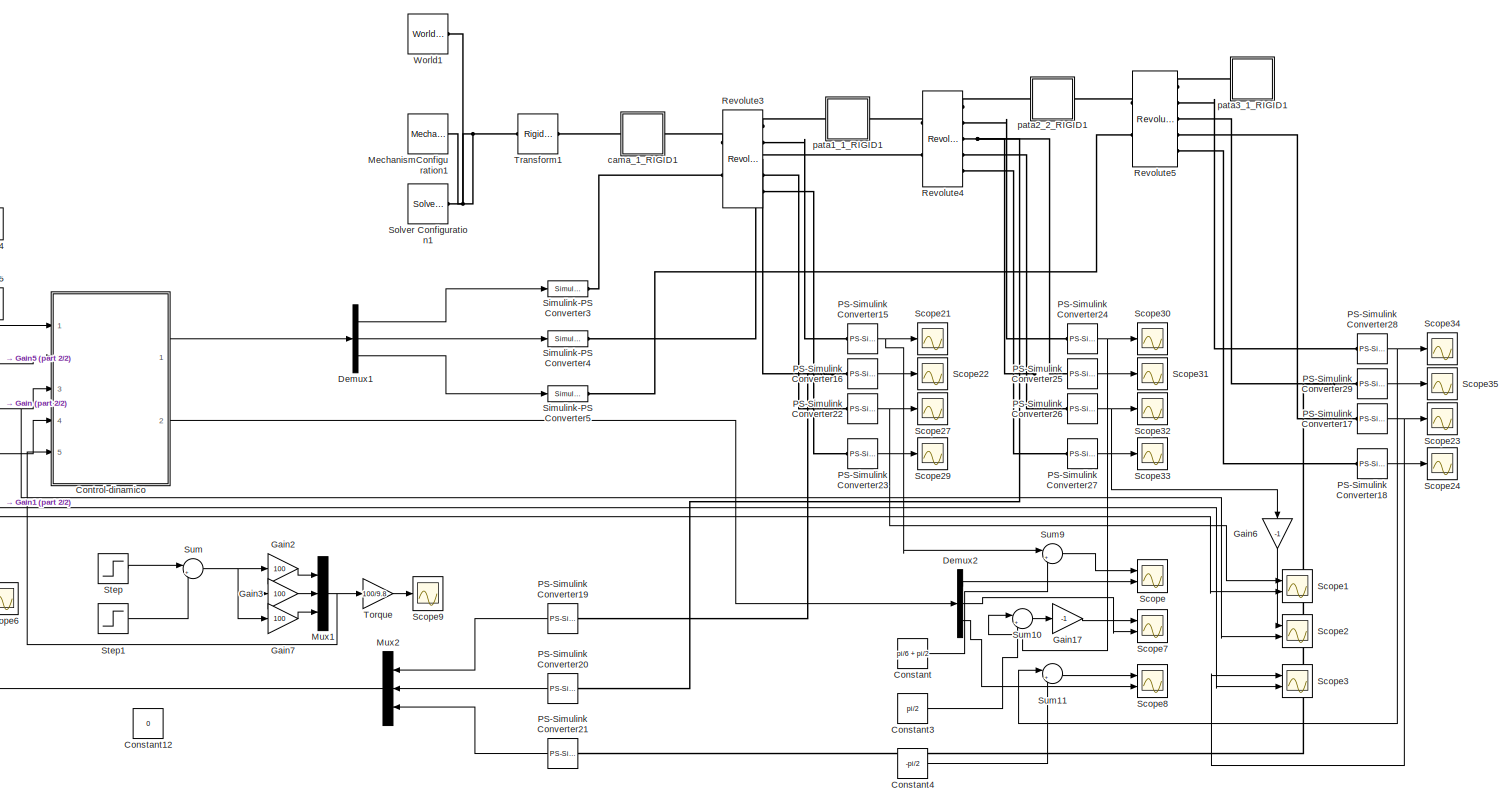
[diagram: root canvas - part 1/2, center side, full height]
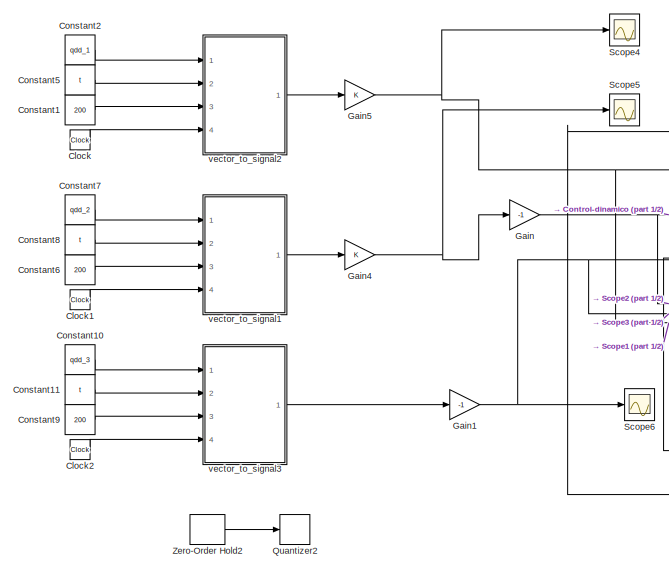
[diagram: root canvas - part 2/2, middle left region]
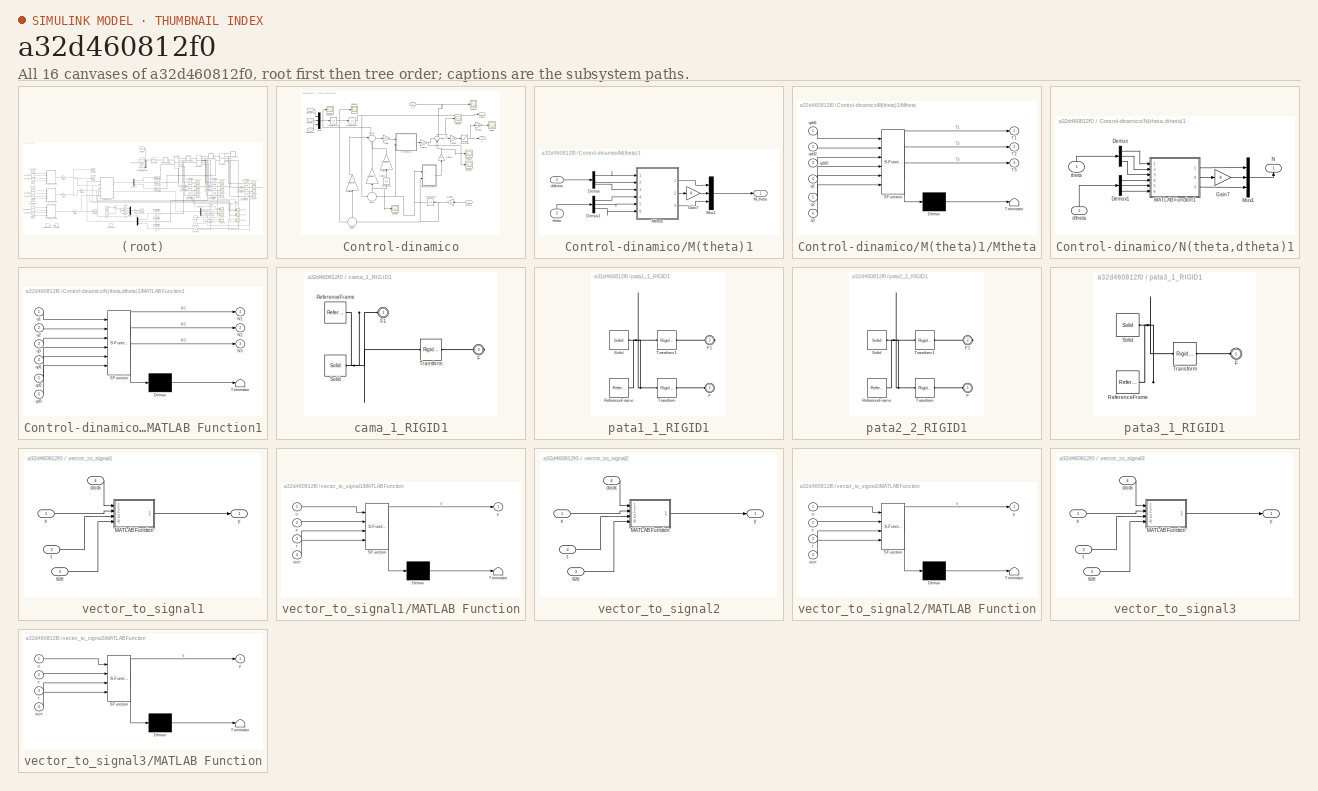
[diagram: thumbnail index - all 16 canvases of the model, root first then tree order]
MODEL slx_a32d460812f0
KIND model
CONFIG AbsTol = auto
CONFIG EnableMultiTasking = off
CONFIG FixedStep = auto
CONFIG MaxStep = auto
CONFIG MinStep = auto
CONFIG RelTol = 1e-3
CONFIG SampleTimeConstraint = Unconstrained
CONFIG Solver = VariableStepAuto
CONFIG SolverName = VariableStepAuto
CONFIG StartTime = 0.0
CONFIG StopTime = 2
WORKSPACE source: external: MATLAB File  (data not in archive)
BLOCK [Clock] Clock
BLOCK [Clock] Clock1
BLOCK [Clock] Clock2
BLOCK [Constant] Constant
  Value = pi/6 + pi/2
BLOCK [Constant] Constant1
  Value = 200
BLOCK [Constant] Constant10
  Value = qdd_3
BLOCK [Constant] Constant11
  Value = t
BLOCK [Constant] Constant12
  Value = 0
BLOCK [Constant] Constant2
  Value = qdd_1
BLOCK [Constant] Constant3
  Value = pi/2
BLOCK [Constant] Constant4
  Value = -pi/2
BLOCK [Constant] Constant5
  Value = t
BLOCK [Constant] Constant6
  Value = 200
BLOCK [Constant] Constant7
  Value = qdd_2
BLOCK [Constant] Constant8
  Value = t
BLOCK [Constant] Constant9
  Value = 200
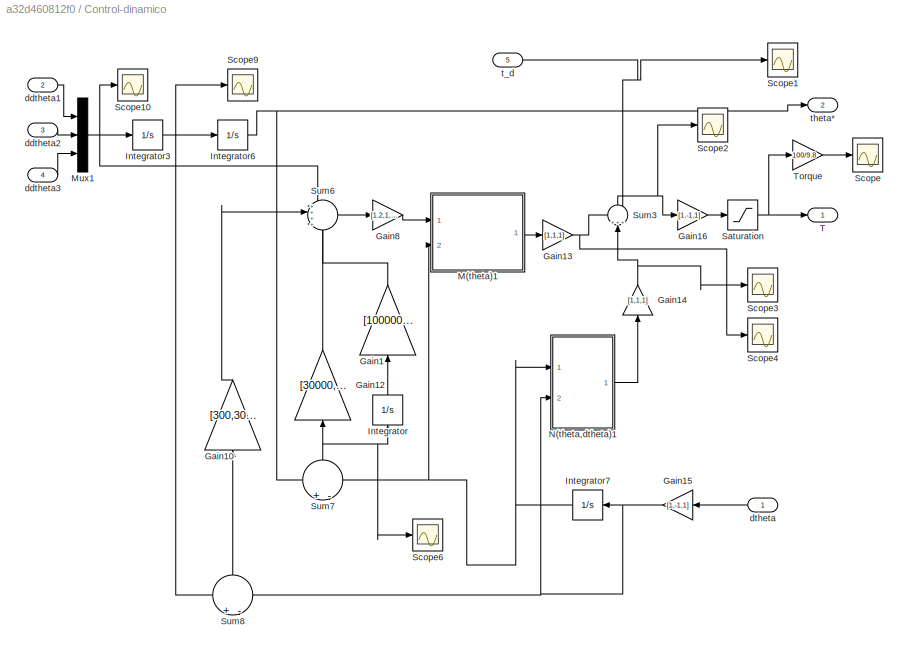
BLOCK [SubSystem] Control-dinamico
  Ports = [5, 2]
  RequestExecContextInheritance = off
  Variant = off
BLOCK [Gain] Control-dinamico/Gain1
  Gain = [1000000,1000000,1000000]
  OutDataTypeStr = Inherit: Inherit via internal rule
  ParamDataTypeStr = Inherit: Inherit via internal rule
  SaturateOnIntegerOverflow = off
BLOCK [Gain] Control-dinamico/Gain10
  Gain = [300,300,300]
  OutDataTypeStr = Inherit: Inherit via internal rule
  ParamDataTypeStr = Inherit: Inherit via internal rule
  SaturateOnIntegerOverflow = off
BLOCK [Gain] Control-dinamico/Gain12
  Gain = [30000,30000,30000]
  OutDataTypeStr = Inherit: Inherit via internal rule
  ParamDataTypeStr = Inherit: Inherit via internal rule
  SaturateOnIntegerOverflow = off
BLOCK [Gain] Control-dinamico/Gain13
  Gain = [1,1,1]
  OutDataTypeStr = Inherit: Inherit via internal rule
  ParamDataTypeStr = Inherit: Inherit via internal rule
  SaturateOnIntegerOverflow = off
BLOCK [Gain] Control-dinamico/Gain14
  Gain = [1,1,1]
  OutDataTypeStr = Inherit: Inherit via internal rule
  ParamDataTypeStr = Inherit: Inherit via internal rule
  SaturateOnIntegerOverflow = off
BLOCK [Gain] Control-dinamico/Gain15
  Gain = [1,-1,1]
  OutDataTypeStr = Inherit: Inherit via internal rule
  ParamDataTypeStr = Inherit: Inherit via internal rule
  SaturateOnIntegerOverflow = off
BLOCK [Gain] Control-dinamico/Gain16
  Gain = [1,-1,1]
  OutDataTypeStr = Inherit: Inherit via internal rule
  ParamDataTypeStr = Inherit: Inherit via internal rule
  SaturateOnIntegerOverflow = off
BLOCK [Gain] Control-dinamico/Gain8
  Gain = [1.2,1,11.2]
  OutDataTypeStr = Inherit: Inherit via internal rule
  ParamDataTypeStr = Inherit: Inherit via internal rule
  SaturateOnIntegerOverflow = off
BLOCK [Integrator] Control-dinamico/Integrator
  InitialCondition = [0,0,0]
  Ports = [1, 1]
BLOCK [Integrator] Control-dinamico/Integrator3
  Ports = [1, 1]
BLOCK [Integrator] Control-dinamico/Integrator6
  InitialCondition = [0,0,-pi/2]
  Ports = [1, 1]
BLOCK [Integrator] Control-dinamico/Integrator7
  InitialCondition = [0,0,-pi/2]
  Ports = [1, 1]
BLOCK [SubSystem] Control-dinamico/M(theta)1
  Ports = [2, 1]
  RequestExecContextInheritance = off
  Variant = off
BLOCK [Demux] Control-dinamico/M(theta)1/Demux
  DisplayOption = bar
  Outputs = 3
  Ports = [1, 3]
BLOCK [Demux] Control-dinamico/M(theta)1/Demux1
  DisplayOption = bar
  Outputs = 3
  Ports = [1, 3]
BLOCK [Gain] Control-dinamico/M(theta)1/Gain7
  OutDataTypeStr = Inherit: Inherit via internal rule
  ParamDataTypeStr = Inherit: Inherit via internal rule
  SaturateOnIntegerOverflow = off
BLOCK [Outport] Control-dinamico/M(theta)1/M_theta
  IconDisplay = Port number
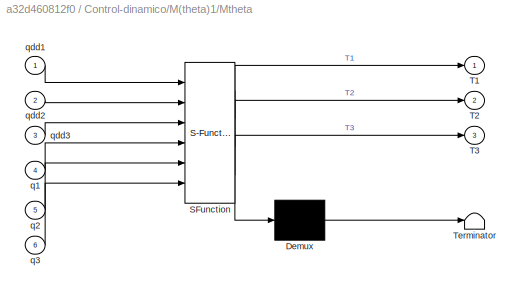
BLOCK [SubSystem] Control-dinamico/M(theta)1/Mtheta
  ErrorFcn = Stateflow.Translate.translate
  PermitHierarchicalResolution = ExplicitOnly
  Ports = [6, 3]
  RequestExecContextInheritance = off
  SFBlockType = MATLAB Function
  TreatAsAtomicUnit = on
  Variant = off
BLOCK [Demux] Control-dinamico/M(theta)1/Mtheta/ Demux 
  Outputs = 1
  Ports = [1, 1]
BLOCK [S-Function] Control-dinamico/M(theta)1/Mtheta/ SFunction 
  EnableBusSupport = on
  FunctionName = sf_sfun
  PortCounts = [6 4]
  Ports = [6, 4]
  SFcnIsStateOwnerBlock = off
  SFunctionDeploymentMode = off
  Tag = Stateflow S-Function hex_simplify_control 5
BLOCK [Terminator] Control-dinamico/M(theta)1/Mtheta/ Terminator 
BLOCK [Outport] Control-dinamico/M(theta)1/Mtheta/T1
  IconDisplay = Port number
BLOCK [Outport] Control-dinamico/M(theta)1/Mtheta/T2
  IconDisplay = Port number
  Port = 2
BLOCK [Outport] Control-dinamico/M(theta)1/Mtheta/T3
  IconDisplay = Port number
  Port = 3
BLOCK [Inport] Control-dinamico/M(theta)1/Mtheta/q1
  IconDisplay = Port number
  Port = 4
BLOCK [Inport] Control-dinamico/M(theta)1/Mtheta/q2
  IconDisplay = Port number
  Port = 5
BLOCK [Inport] Control-dinamico/M(theta)1/Mtheta/q3
  IconDisplay = Port number
  Port = 6
BLOCK [Inport] Control-dinamico/M(theta)1/Mtheta/qdd1
  IconDisplay = Port number
BLOCK [Inport] Control-dinamico/M(theta)1/Mtheta/qdd2
  IconDisplay = Port number
  Port = 2
BLOCK [Inport] Control-dinamico/M(theta)1/Mtheta/qdd3
  IconDisplay = Port number
  Port = 3
BLOCK [Mux] Control-dinamico/M(theta)1/Mux1
  DisplayOption = bar
  Inputs = 3
  Ports = [3, 1]
BLOCK [Inport] Control-dinamico/M(theta)1/ddtheta
  IconDisplay = Port number
BLOCK [Inport] Control-dinamico/M(theta)1/theta
  IconDisplay = Port number
  Port = 2
BLOCK [Mux] Control-dinamico/Mux1
  DisplayOption = bar
  Inputs = 3
  Ports = [3, 1]
BLOCK [SubSystem] Control-dinamico/N(theta,dtheta)1
  Ports = [2, 1]
  RequestExecContextInheritance = off
  Variant = off
BLOCK [Demux] Control-dinamico/N(theta,dtheta)1/Demux
  DisplayOption = bar
  Outputs = 3
  Ports = [1, 3]
BLOCK [Demux] Control-dinamico/N(theta,dtheta)1/Demux1
  DisplayOption = bar
  Outputs = 3
  Ports = [1, 3]
BLOCK [Gain] Control-dinamico/N(theta,dtheta)1/Gain7
  OutDataTypeStr = Inherit: Inherit via internal rule
  ParamDataTypeStr = Inherit: Inherit via internal rule
  SaturateOnIntegerOverflow = off
BLOCK [SubSystem] Control-dinamico/N(theta,dtheta)1/MATLAB Function1
  ErrorFcn = Stateflow.Translate.translate
  PermitHierarchicalResolution = ExplicitOnly
  Ports = [6, 3]
  RequestExecContextInheritance = off
  SFBlockType = MATLAB Function
  TreatAsAtomicUnit = on
  Variant = off
BLOCK [Demux] Control-dinamico/N(theta,dtheta)1/MATLAB Function1/ Demux 
  Outputs = 1
  Ports = [1, 1]
BLOCK [S-Function] Control-dinamico/N(theta,dtheta)1/MATLAB Function1/ SFunction 
  EnableBusSupport = on
  FunctionName = sf_sfun
  PortCounts = [6 4]
  Ports = [6, 4]
  SFcnIsStateOwnerBlock = off
  SFunctionDeploymentMode = off
  Tag = Stateflow S-Function hex_simplify_control 6
BLOCK [Terminator] Control-dinamico/N(theta,dtheta)1/MATLAB Function1/ Terminator 
BLOCK [Outport] Control-dinamico/N(theta,dtheta)1/MATLAB Function1/N1
  IconDisplay = Port number
BLOCK [Outport] Control-dinamico/N(theta,dtheta)1/MATLAB Function1/N2
  IconDisplay = Port number
  Port = 2
BLOCK [Outport] Control-dinamico/N(theta,dtheta)1/MATLAB Function1/N3
  IconDisplay = Port number
  Port = 3
BLOCK [Inport] Control-dinamico/N(theta,dtheta)1/MATLAB Function1/q1
  IconDisplay = Port number
BLOCK [Inport] Control-dinamico/N(theta,dtheta)1/MATLAB Function1/q2
  IconDisplay = Port number
  Port = 2
BLOCK [Inport] Control-dinamico/N(theta,dtheta)1/MATLAB Function1/q3
  IconDisplay = Port number
  Port = 3
BLOCK [Inport] Control-dinamico/N(theta,dtheta)1/MATLAB Function1/qd1
  IconDisplay = Port number
  Port = 4
BLOCK [Inport] Control-dinamico/N(theta,dtheta)1/MATLAB Function1/qd2
  IconDisplay = Port number
  Port = 5
BLOCK [Inport] Control-dinamico/N(theta,dtheta)1/MATLAB Function1/qd3
  IconDisplay = Port number
  Port = 6
BLOCK [Mux] Control-dinamico/N(theta,dtheta)1/Mux1
  DisplayOption = bar
  Inputs = 3
  Ports = [3, 1]
BLOCK [Outport] Control-dinamico/N(theta,dtheta)1/N
  IconDisplay = Port number
BLOCK [Inport] Control-dinamico/N(theta,dtheta)1/dtheta
  IconDisplay = Port number
  Port = 2
BLOCK [Inport] Control-dinamico/N(theta,dtheta)1/theta
  IconDisplay = Port number
BLOCK [Saturate] Control-dinamico/Saturation
  InputPortMap = u0
  LinearizeAsGain = off
  LowerLimit = -5
  Ports = [1, 1]
  UpperLimit = 5
  ZeroCross = off
BLOCK [Scope] Control-dinamico/Scope
  NumInputPorts = 1
  Ports = [1]
  ScopeSpecificationString = Simulink.scopes.TimeScopeBlockCfg('CurrentConfiguration', extmgr.ConfigurationSet(extmgr.Configuration('Core','General UI',true,'FigureColor',[1 1 1]),extmgr.Configuration('Core','Source UI',true),extmgr.Configuration('Sources','WiredSimulink',true,'DataLoggingVariableName','ScopeData3'),extmgr.Configuration('Visuals','Time Domain',true,'SerializedDisplays',{struct('MinYLimReal','-5.47517','MaxYLi...<+1879ch>
BLOCK [Scope] Control-dinamico/Scope1
  NumInputPorts = 1
  Ports = [1]
  ScopeSpecificationString = Simulink.scopes.TimeScopeBlockCfg('CurrentConfiguration', extmgr.ConfigurationSet(extmgr.Configuration('Core','General UI',true,'FigureColor',[1 1 1]),extmgr.Configuration('Core','Source UI',true),extmgr.Configuration('Sources','WiredSimulink',true,'DataLoggingVariableName','ScopeData4'),extmgr.Configuration('Visuals','Time Domain',true,'SerializedDisplays',{struct('MinYLimReal','-0.125','MaxYLimR...<+1856ch>
BLOCK [Scope] Control-dinamico/Scope10
  NumInputPorts = 1
  Ports = [1]
  ScopeSpecificationString = Simulink.scopes.TimeScopeBlockCfg('CurrentConfiguration', extmgr.ConfigurationSet(extmgr.Configuration('Core','General UI',true),extmgr.Configuration('Core','Source UI',true),extmgr.Configuration('Sources','WiredSimulink',true,'DataLoggingVariableName','ScopeData10'),extmgr.Configuration('Visuals','Time Domain',true,'SerializedDisplays',{struct('MinYLimReal','-0.3927','MaxYLimReal','3.53429','YLab...<+1388ch>
BLOCK [Scope] Control-dinamico/Scope2
  NumInputPorts = 1
  Ports = [1]
  ScopeSpecificationString = Simulink.scopes.TimeScopeBlockCfg('CurrentConfiguration', extmgr.ConfigurationSet(extmgr.Configuration('Core','General UI',true,'FigureColor',[1 1 1]),extmgr.Configuration('Core','Source UI',true),extmgr.Configuration('Sources','WiredSimulink',true,'DataLoggingVariableName','ScopeData5'),extmgr.Configuration('Visuals','Time Domain',true,'SerializedDisplays',{struct('MinYLimReal','-1.47488','MaxYLi...<+1897ch>
BLOCK [Scope] Control-dinamico/Scope3
  NumInputPorts = 1
  Ports = [1]
  ScopeSpecificationString = Simulink.scopes.TimeScopeBlockCfg('CurrentConfiguration', extmgr.ConfigurationSet(extmgr.Configuration('Core','General UI',true,'FigureColor',[1 1 1]),extmgr.Configuration('Core','Source UI',true),extmgr.Configuration('Sources','WiredSimulink',true,'DataLoggingVariableName','ScopeData6'),extmgr.Configuration('Visuals','Time Domain',true,'SerializedDisplays',{struct('MinYLimReal','-1.47488','MaxYLi...<+1897ch>
BLOCK [Scope] Control-dinamico/Scope4
  NumInputPorts = 1
  Ports = [1]
  ScopeSpecificationString = Simulink.scopes.TimeScopeBlockCfg('CurrentConfiguration', extmgr.ConfigurationSet(extmgr.Configuration('Core','General UI',true,'FigureColor',[1 1 1]),extmgr.Configuration('Core','Source UI',true),extmgr.Configuration('Sources','WiredSimulink',true,'DataLoggingVariableName','ScopeData7'),extmgr.Configuration('Visuals','Time Domain',true,'SerializedDisplays',{struct('MinYLimReal','-1.47488','MaxYLi...<+1897ch>
BLOCK [Scope] Control-dinamico/Scope6
  NumInputPorts = 1
  Ports = [1]
  ScopeSpecificationString = Simulink.scopes.TimeScopeBlockCfg('CurrentConfiguration', extmgr.ConfigurationSet(extmgr.Configuration('Core','General UI',true),extmgr.Configuration('Core','Source UI',true),extmgr.Configuration('Sources','WiredSimulink',true,'DataLoggingVariableName','ScopeData1'),extmgr.Configuration('Visuals','Time Domain',true,'SerializedDisplays',{struct('MinYLimReal','-0.1568','MaxYLimReal','0.15334','YLabe...<+1433ch>
BLOCK [Scope] Control-dinamico/Scope9
  NumInputPorts = 1
  Ports = [1]
  ScopeSpecificationString = Simulink.scopes.TimeScopeBlockCfg('CurrentConfiguration', extmgr.ConfigurationSet(extmgr.Configuration('Core','General UI',true),extmgr.Configuration('Core','Source UI',true),extmgr.Configuration('Sources','WiredSimulink',true,'DataLoggingVariableName','ScopeData8'),extmgr.Configuration('Visuals','Time Domain',true,'SerializedDisplays',{struct('MinYLimReal','-3.3159','MaxYLimReal','3.31591','YLabe...<+1402ch>
BLOCK [Sum] Control-dinamico/Sum3
  IconShape = round
  InputSameDT = off
  Inputs = +++
  OutDataTypeStr = Inherit: Inherit via internal rule
  Ports = [3, 1]
  SaturateOnIntegerOverflow = off
BLOCK [Sum] Control-dinamico/Sum6
  IconShape = round
  InputSameDT = off
  Inputs = ++++
  OutDataTypeStr = Inherit: Inherit via internal rule
  Ports = [4, 1]
  SaturateOnIntegerOverflow = off
BLOCK [Sum] Control-dinamico/Sum7
  IconShape = round
  InputSameDT = off
  Inputs = +-
  OutDataTypeStr = Inherit: Inherit via internal rule
  Ports = [2, 1]
  SaturateOnIntegerOverflow = off
BLOCK [Sum] Control-dinamico/Sum8
  IconShape = round
  InputSameDT = off
  Inputs = +-
  OutDataTypeStr = Inherit: Inherit via internal rule
  Ports = [2, 1]
  SaturateOnIntegerOverflow = off
BLOCK [Outport] Control-dinamico/T
  IconDisplay = Port number
BLOCK [Gain] Control-dinamico/Torque
  Gain = 100/9.8
  OutDataTypeStr = Inherit: Inherit via internal rule
  ParamDataTypeStr = Inherit: Inherit via internal rule
  SaturateOnIntegerOverflow = off
BLOCK [Inport] Control-dinamico/ddtheta1
  IconDisplay = Port number
  Port = 2
BLOCK [Inport] Control-dinamico/ddtheta2
  IconDisplay = Port number
  Port = 3
BLOCK [Inport] Control-dinamico/ddtheta3
  IconDisplay = Port number
  Port = 4
BLOCK [Inport] Control-dinamico/dtheta
  IconDisplay = Port number
BLOCK [Inport] Control-dinamico/t_d
  IconDisplay = Port number
  Port = 5
BLOCK [Outport] Control-dinamico/theta*
  IconDisplay = Port number
  Port = 2
BLOCK [Demux] Demux1
  DisplayOption = bar
  Outputs = 3
  Ports = [1, 3]
BLOCK [Demux] Demux2
  DisplayOption = bar
  Outputs = 3
  Ports = [1, 3]
BLOCK [Gain] Gain
  Gain = -1
  OutDataTypeStr = Inherit: Inherit via internal rule
  ParamDataTypeStr = Inherit: Inherit via internal rule
  SaturateOnIntegerOverflow = off
BLOCK [Gain] Gain1
  Gain = -1
  OutDataTypeStr = Inherit: Inherit via internal rule
  ParamDataTypeStr = Inherit: Inherit via internal rule
  SaturateOnIntegerOverflow = off
BLOCK [Gain] Gain17
  Gain = -1
  OutDataTypeStr = Inherit: Inherit via internal rule
  ParamDataTypeStr = Inherit: Inherit via internal rule
  SaturateOnIntegerOverflow = off
BLOCK [Gain] Gain2
  Gain = 100
  OutDataTypeStr = Inherit: Inherit via internal rule
  ParamDataTypeStr = Inherit: Inherit via internal rule
  SaturateOnIntegerOverflow = off
BLOCK [Gain] Gain3
  Gain = 100
  OutDataTypeStr = Inherit: Inherit via internal rule
  ParamDataTypeStr = Inherit: Inherit via internal rule
  SaturateOnIntegerOverflow = off
BLOCK [Gain] Gain4
  OutDataTypeStr = Inherit: Inherit via internal rule
  ParamDataTypeStr = Inherit: Inherit via internal rule
  SaturateOnIntegerOverflow = off
BLOCK [Gain] Gain5
  OutDataTypeStr = Inherit: Inherit via internal rule
  ParamDataTypeStr = Inherit: Inherit via internal rule
  SaturateOnIntegerOverflow = off
BLOCK [Gain] Gain6
  Gain = -1
  OutDataTypeStr = Inherit: Inherit via internal rule
  ParamDataTypeStr = Inherit: Inherit via internal rule
  SaturateOnIntegerOverflow = off
BLOCK [Gain] Gain7
  Gain = 100
  OutDataTypeStr = Inherit: Inherit via internal rule
  ParamDataTypeStr = Inherit: Inherit via internal rule
  SaturateOnIntegerOverflow = off
BLOCK [Reference] MechanismConfiguration1  REF=sm_lib/Utilities/Mechanism
Configuration
  Ports = [0, 0, 0, 0, 0, 0, 1]
  SourceBlock = sm_lib/Utilities/Mechanism\nConfiguration
  SourceProductBaseCode = MS
  SourceProductName = Simscape Multibody
  SourceType = Mechanism\nConfiguration
BLOCK [Mux] Mux1
  DisplayOption = bar
  Inputs = 3
  Ports = [3, 1]
BLOCK [Mux] Mux2
  DisplayOption = bar
  Inputs = 3
  Ports = [3, 1]
BLOCK [Reference] PS-Simulink Converter15  REF=nesl_utility/PS-Simulink
Converter
  Ports = [0, 1, 0, 0, 0, 1]
  SourceBlock = nesl_utility/PS-Simulink\nConverter
  SourceProductBaseCode = SS
  SourceProductName = Simscape
  SourceType = PS-Simulink\nConverter
BLOCK [Reference] PS-Simulink Converter16  REF=nesl_utility/PS-Simulink
Converter
  Ports = [0, 1, 0, 0, 0, 1]
  SourceBlock = nesl_utility/PS-Simulink\nConverter
  SourceProductBaseCode = SS
  SourceProductName = Simscape
  SourceType = PS-Simulink\nConverter
BLOCK [Reference] PS-Simulink Converter17  REF=nesl_utility/PS-Simulink
Converter
  Ports = [0, 1, 0, 0, 0, 1]
  SourceBlock = nesl_utility/PS-Simulink\nConverter
  SourceProductBaseCode = SS
  SourceProductName = Simscape
  SourceType = PS-Simulink\nConverter
BLOCK [Reference] PS-Simulink Converter18  REF=nesl_utility/PS-Simulink
Converter
  Ports = [0, 1, 0, 0, 0, 1]
  SourceBlock = nesl_utility/PS-Simulink\nConverter
  SourceProductBaseCode = SS
  SourceProductName = Simscape
  SourceType = PS-Simulink\nConverter
BLOCK [Reference] PS-Simulink Converter19  REF=nesl_utility/PS-Simulink
Converter
  Ports = [0, 1, 0, 0, 0, 1]
  SourceBlock = nesl_utility/PS-Simulink\nConverter
  SourceProductBaseCode = SS
  SourceProductName = Simscape
  SourceType = PS-Simulink\nConverter
BLOCK [Reference] PS-Simulink Converter20  REF=nesl_utility/PS-Simulink
Converter
  Ports = [0, 1, 0, 0, 0, 1]
  SourceBlock = nesl_utility/PS-Simulink\nConverter
  SourceProductBaseCode = SS
  SourceProductName = Simscape
  SourceType = PS-Simulink\nConverter
BLOCK [Reference] PS-Simulink Converter21  REF=nesl_utility/PS-Simulink
Converter
  Ports = [0, 1, 0, 0, 0, 1]
  SourceBlock = nesl_utility/PS-Simulink\nConverter
  SourceProductBaseCode = SS
  SourceProductName = Simscape
  SourceType = PS-Simulink\nConverter
BLOCK [Reference] PS-Simulink Converter22  REF=nesl_utility/PS-Simulink
Converter
  Ports = [0, 1, 0, 0, 0, 1]
  SourceBlock = nesl_utility/PS-Simulink\nConverter
  SourceProductBaseCode = SS
  SourceProductName = Simscape
  SourceType = PS-Simulink\nConverter
BLOCK [Reference] PS-Simulink Converter23  REF=nesl_utility/PS-Simulink
Converter
  Ports = [0, 1, 0, 0, 0, 1]
  SourceBlock = nesl_utility/PS-Simulink\nConverter
  SourceProductBaseCode = SS
  SourceProductName = Simscape
  SourceType = PS-Simulink\nConverter
BLOCK [Reference] PS-Simulink Converter24  REF=nesl_utility/PS-Simulink
Converter
  Ports = [0, 1, 0, 0, 0, 1]
  SourceBlock = nesl_utility/PS-Simulink\nConverter
  SourceProductBaseCode = SS
  SourceProductName = Simscape
  SourceType = PS-Simulink\nConverter
BLOCK [Reference] PS-Simulink Converter25  REF=nesl_utility/PS-Simulink
Converter
  Ports = [0, 1, 0, 0, 0, 1]
  SourceBlock = nesl_utility/PS-Simulink\nConverter
  SourceProductBaseCode = SS
  SourceProductName = Simscape
  SourceType = PS-Simulink\nConverter
BLOCK [Reference] PS-Simulink Converter26  REF=nesl_utility/PS-Simulink
Converter
  Ports = [0, 1, 0, 0, 0, 1]
  SourceBlock = nesl_utility/PS-Simulink\nConverter
  SourceProductBaseCode = SS
  SourceProductName = Simscape
  SourceType = PS-Simulink\nConverter
BLOCK [Reference] PS-Simulink Converter27  REF=nesl_utility/PS-Simulink
Converter
  Ports = [0, 1, 0, 0, 0, 1]
  SourceBlock = nesl_utility/PS-Simulink\nConverter
  SourceProductBaseCode = SS
  SourceProductName = Simscape
  SourceType = PS-Simulink\nConverter
BLOCK [Reference] PS-Simulink Converter28  REF=nesl_utility/PS-Simulink
Converter
  Ports = [0, 1, 0, 0, 0, 1]
  SourceBlock = nesl_utility/PS-Simulink\nConverter
  SourceProductBaseCode = SS
  SourceProductName = Simscape
  SourceType = PS-Simulink\nConverter
BLOCK [Reference] PS-Simulink Converter29  REF=nesl_utility/PS-Simulink
Converter
  Ports = [0, 1, 0, 0, 0, 1]
  SourceBlock = nesl_utility/PS-Simulink\nConverter
  SourceProductBaseCode = SS
  SourceProductName = Simscape
  SourceType = PS-Simulink\nConverter
BLOCK [Quantizer] Quantizer2
  QuantizationInterval = 1/sample_frequency
BLOCK [Reference] Revolute3  REF=sm_lib/Joints/Revolute Joint
  Ports = [0, 0, 0, 0, 0, 2, 5]
  SourceBlock = sm_lib/Joints/Revolute Joint
  SourceProductBaseCode = MS
  SourceProductName = Simscape Multibody
  SourceType = Revolute Joint
BLOCK [Reference] Revolute4  REF=sm_lib/Joints/Revolute Joint
  Ports = [0, 0, 0, 0, 0, 2, 5]
  SourceBlock = sm_lib/Joints/Revolute Joint
  SourceProductBaseCode = MS
  SourceProductName = Simscape Multibody
  SourceType = Revolute Joint
BLOCK [Reference] Revolute5  REF=sm_lib/Joints/Revolute Joint
  Ports = [0, 0, 0, 0, 0, 2, 5]
  SourceBlock = sm_lib/Joints/Revolute Joint
  SourceProductBaseCode = MS
  SourceProductName = Simscape Multibody
  SourceType = Revolute Joint
BLOCK [Scope] Scope
  NumInputPorts = 2
  Ports = [2]
  ScopeSpecificationString = Simulink.scopes.TimeScopeBlockCfg('CurrentConfiguration', extmgr.ConfigurationSet(extmgr.Configuration('Core','General UI',true,'FigureColor',[1 1 1]),extmgr.Configuration('Core','Source UI',true),extmgr.Configuration('Sources','WiredSimulink',true,'DataLoggingVariableName','ScopeData19'),extmgr.Configuration('Visuals','Time Domain',true,'SerializedDisplays',{struct('MinYLimReal','-0.42369','MaxYL...<+1753ch>
BLOCK [Scope] Scope1
  NumInputPorts = 2
  Ports = [2]
  ScopeSpecificationString = Simulink.scopes.TimeScopeBlockCfg('CurrentConfiguration', extmgr.ConfigurationSet(extmgr.Configuration('Core','General UI',true),extmgr.Configuration('Core','Source UI',true),extmgr.Configuration('Sources','WiredSimulink',true,'DataLoggingVariableName','ScopeData1'),extmgr.Configuration('Visuals','Time Domain',true,'SerializedDisplays',{struct('MinYLimReal','-1536.72043','MaxYLimReal','1494.45954'...<+1481ch>
BLOCK [Scope] Scope2
  NumInputPorts = 2
  Ports = [2]
  ScopeSpecificationString = Simulink.scopes.TimeScopeBlockCfg('CurrentConfiguration', extmgr.ConfigurationSet(extmgr.Configuration('Core','General UI',true),extmgr.Configuration('Core','Source UI',true),extmgr.Configuration('Sources','WiredSimulink',true,'DataLoggingVariableName','ScopeData2'),extmgr.Configuration('Visuals','Time Domain',true,'SerializedDisplays',{struct('MinYLimReal','-20.8521','MaxYLimReal','20.85177','YLa...<+1444ch>
BLOCK [Scope] Scope21
  NumInputPorts = 1
  Ports = [1]
  ScopeSpecificationString = Simulink.scopes.TimeScopeBlockCfg('CurrentConfiguration', extmgr.ConfigurationSet(extmgr.Configuration('Core','General UI',true),extmgr.Configuration('Core','Source UI',true),extmgr.Configuration('Sources','WiredSimulink',true,'DataLoggingVariableName','ScopeData21'),extmgr.Configuration('Visuals','Time Domain',true,'SerializedDisplays',{struct('MinYLimReal','-2.12269','MaxYLimReal','-2.02343','YL...<+1404ch>
BLOCK [Scope] Scope22
  NumInputPorts = 1
  Ports = [1]
  ScopeSpecificationString = Simulink.scopes.TimeScopeBlockCfg('CurrentConfiguration', extmgr.ConfigurationSet(extmgr.Configuration('Core','General UI',true),extmgr.Configuration('Core','Source UI',true),extmgr.Configuration('Sources','WiredSimulink',true,'DataLoggingVariableName','ScopeData5'),extmgr.Configuration('Visuals','Time Domain',true,'SerializedDisplays',{struct('MinYLimReal','-0.11777','MaxYLimReal','1.05997','YLab...<+1382ch>
BLOCK [Scope] Scope23
  NumInputPorts = 1
  Ports = [1]
  ScopeSpecificationString = Simulink.scopes.TimeScopeBlockCfg('CurrentConfiguration', extmgr.ConfigurationSet(extmgr.Configuration('Core','General UI',true),extmgr.Configuration('Core','Source UI',true),extmgr.Configuration('Sources','WiredSimulink',true,'DataLoggingVariableName','ScopeData6'),extmgr.Configuration('Visuals','Time Domain',true,'SerializedDisplays',{struct('MinYLimReal','-1.537','MaxYLimReal','1.59378','YLabel...<+1397ch>
BLOCK [Scope] Scope24
  NumInputPorts = 1
  Ports = [1]
  ScopeSpecificationString = Simulink.scopes.TimeScopeBlockCfg('CurrentConfiguration', extmgr.ConfigurationSet(extmgr.Configuration('Core','General UI',true),extmgr.Configuration('Core','Source UI',true),extmgr.Configuration('Sources','WiredSimulink',true,'DataLoggingVariableName','ScopeData7'),extmgr.Configuration('Visuals','Time Domain',true,'SerializedDisplays',{struct('MinYLimReal','-1.39799','MaxYLimReal','1.39701','YLab...<+1382ch>
BLOCK [Scope] Scope27
  NumInputPorts = 1
  Ports = [1]
  ScopeSpecificationString = Simulink.scopes.TimeScopeBlockCfg('CurrentConfiguration', extmgr.ConfigurationSet(extmgr.Configuration('Core','General UI',true),extmgr.Configuration('Core','Source UI',true),extmgr.Configuration('Sources','WiredSimulink',true,'DataLoggingVariableName','ScopeData9'),extmgr.Configuration('Visuals','Time Domain',true,'SerializedDisplays',{struct('MinYLimReal','-0.0000000000041','MaxYLimReal','0.0000...<+1471ch>
BLOCK [Scope] Scope29
  NumInputPorts = 1
  Ports = [1]
  ScopeSpecificationString = Simulink.scopes.TimeScopeBlockCfg('CurrentConfiguration', extmgr.ConfigurationSet(extmgr.Configuration('Core','General UI',true),extmgr.Configuration('Core','Source UI',true),extmgr.Configuration('Sources','WiredSimulink',true,'DataLoggingVariableName','ScopeData11'),extmgr.Configuration('Visuals','Time Domain',true,'SerializedDisplays',{struct('MinYLimReal','-0.000000000000005','MaxYLimReal','0.0...<+1484ch>
BLOCK [Scope] Scope3
  NumInputPorts = 2
  Ports = [2]
  ScopeSpecificationString = Simulink.scopes.TimeScopeBlockCfg('CurrentConfiguration', extmgr.ConfigurationSet(extmgr.Configuration('Core','General UI',true),extmgr.Configuration('Core','Source UI',true),extmgr.Configuration('Sources','WiredSimulink',true,'DataLoggingVariableName','ScopeData3'),extmgr.Configuration('Visuals','Time Domain',true,'SerializedDisplays',{struct('MinYLimReal','-9045.37095','MaxYLimReal','9092.14594'...<+1483ch>
BLOCK [Scope] Scope30
  NumInputPorts = 1
  Ports = [1]
  ScopeSpecificationString = Simulink.scopes.TimeScopeBlockCfg('CurrentConfiguration', extmgr.ConfigurationSet(extmgr.Configuration('Core','General UI',true),extmgr.Configuration('Core','Source UI',true),extmgr.Configuration('Sources','WiredSimulink',true,'DataLoggingVariableName','ScopeData13'),extmgr.Configuration('Visuals','Time Domain',true,'SerializedDisplays',{struct('MinYLimReal','-2.44752','MaxYLimReal','-0.36453','YL...<+1385ch>
BLOCK [Scope] Scope31
  NumInputPorts = 1
  Ports = [1]
  ScopeSpecificationString = Simulink.scopes.TimeScopeBlockCfg('CurrentConfiguration', extmgr.ConfigurationSet(extmgr.Configuration('Core','General UI',true),extmgr.Configuration('Core','Source UI',true),extmgr.Configuration('Sources','WiredSimulink',true,'DataLoggingVariableName','ScopeData14'),extmgr.Configuration('Visuals','Time Domain',true,'SerializedDisplays',{struct('MinYLimReal','-1.21817','MaxYLimReal','1.57384','YLa...<+1383ch>
BLOCK [Scope] Scope32
  NumInputPorts = 1
  Ports = [1]
  ScopeSpecificationString = Simulink.scopes.TimeScopeBlockCfg('CurrentConfiguration', extmgr.ConfigurationSet(extmgr.Configuration('Core','General UI',true),extmgr.Configuration('Core','Source UI',true),extmgr.Configuration('Sources','WiredSimulink',true,'DataLoggingVariableName','ScopeData15'),extmgr.Configuration('Visuals','Time Domain',true,'SerializedDisplays',{struct('MinYLimReal','-0.20439','MaxYLimReal','0.07084','YLa...<+1402ch>
BLOCK [Scope] Scope33
  NumInputPorts = 1
  Ports = [1]
  ScopeSpecificationString = Simulink.scopes.TimeScopeBlockCfg('CurrentConfiguration', extmgr.ConfigurationSet(extmgr.Configuration('Core','General UI',true),extmgr.Configuration('Core','Source UI',true),extmgr.Configuration('Sources','WiredSimulink',true,'DataLoggingVariableName','ScopeData16'),extmgr.Configuration('Visuals','Time Domain',true,'SerializedDisplays',{struct('MinYLimReal','-5.9551','MaxYLimReal','3.58926','YLab...<+1379ch>
BLOCK [Scope] Scope34
  NumInputPorts = 1
  Ports = [1]
  ScopeSpecificationString = Simulink.scopes.TimeScopeBlockCfg('CurrentConfiguration', extmgr.ConfigurationSet(extmgr.Configuration('Core','General UI',true),extmgr.Configuration('Core','Source UI',true),extmgr.Configuration('Sources','WiredSimulink',true,'DataLoggingVariableName','ScopeData17'),extmgr.Configuration('Visuals','Time Domain',true,'SerializedDisplays',{struct('MinYLimReal','-0.05336','MaxYLimReal','0.01132','YLa...<+1427ch>
BLOCK [Scope] Scope35
  NumInputPorts = 1
  Ports = [1]
  ScopeSpecificationString = Simulink.scopes.TimeScopeBlockCfg('CurrentConfiguration', extmgr.ConfigurationSet(extmgr.Configuration('Core','General UI',true),extmgr.Configuration('Core','Source UI',true),extmgr.Configuration('Sources','WiredSimulink',true,'DataLoggingVariableName','ScopeData18'),extmgr.Configuration('Visuals','Time Domain',true,'SerializedDisplays',{struct('MinYLimReal','-2.47214','MaxYLimReal','22.24928','YL...<+1387ch>
BLOCK [Scope] Scope4
  NumInputPorts = 1
  Ports = [1]
  ScopeSpecificationString = Simulink.scopes.TimeScopeBlockCfg('CurrentConfiguration', extmgr.ConfigurationSet(extmgr.Configuration('Core','General UI',true),extmgr.Configuration('Core','Source UI',true),extmgr.Configuration('Sources','WiredSimulink',true,'DataLoggingVariableName','ScopeData1'),extmgr.Configuration('Visuals','Time Domain',true,'SerializedDisplays',{struct('MinYLimReal','-5.6665','MaxYLimReal','5.66642','YLabe...<+1385ch>
BLOCK [Scope] Scope5
  NumInputPorts = 1
  Ports = [1]
  ScopeSpecificationString = Simulink.scopes.TimeScopeBlockCfg('CurrentConfiguration', extmgr.ConfigurationSet(extmgr.Configuration('Core','General UI',true),extmgr.Configuration('Core','Source UI',true),extmgr.Configuration('Sources','WiredSimulink',true,'DataLoggingVariableName','ScopeData2'),extmgr.Configuration('Visuals','Time Domain',true,'SerializedDisplays',{struct('MinYLimReal','-0.80825','MaxYLimReal','0.80825','YLab...<+1376ch>
BLOCK [Scope] Scope6
  NumInputPorts = 1
  Ports = [1]
  ScopeSpecificationString = Simulink.scopes.TimeScopeBlockCfg('CurrentConfiguration', extmgr.ConfigurationSet(extmgr.Configuration('Core','General UI',true),extmgr.Configuration('Core','Source UI',true),extmgr.Configuration('Sources','WiredSimulink',true,'DataLoggingVariableName','ScopeData3'),extmgr.Configuration('Visuals','Time Domain',true,'SerializedDisplays',{struct('MinYLimReal','-0.67392','MaxYLimReal','0.67392','YLab...<+1364ch>
BLOCK [Scope] Scope7
  NumInputPorts = 2
  Ports = [2]
  ScopeSpecificationString = Simulink.scopes.TimeScopeBlockCfg('CurrentConfiguration', extmgr.ConfigurationSet(extmgr.Configuration('Core','General UI',true,'FigureColor',[1 1 1]),extmgr.Configuration('Core','Source UI',true),extmgr.Configuration('Sources','WiredSimulink',true,'DataLoggingVariableName','ScopeData22'),extmgr.Configuration('Visuals','Time Domain',true,'SerializedDisplays',{struct('MinYLimReal','-0.31335','MaxYL...<+1729ch>
BLOCK [Scope] Scope8
  NumInputPorts = 2
  Ports = [2]
  ScopeSpecificationString = Simulink.scopes.TimeScopeBlockCfg('CurrentConfiguration', extmgr.ConfigurationSet(extmgr.Configuration('Core','General UI',true,'FigureColor',[1 1 1]),extmgr.Configuration('Core','Source UI',true),extmgr.Configuration('Sources','WiredSimulink',true,'DataLoggingVariableName','ScopeData23'),extmgr.Configuration('Visuals','Time Domain',true,'SerializedDisplays',{struct('MinYLimReal','-2.21405','MaxYL...<+1703ch>
BLOCK [Scope] Scope9
  NumInputPorts = 1
  Ports = [1]
  ScopeSpecificationString = Simulink.scopes.TimeScopeBlockCfg('CurrentConfiguration', extmgr.ConfigurationSet(extmgr.Configuration('Core','General UI',true,'FigureColor',[1 1 1]),extmgr.Configuration('Core','Source UI',true),extmgr.Configuration('Sources','WiredSimulink',true,'DataLoggingVariableName','ScopeData2'),extmgr.Configuration('Visuals','Time Domain',true,'SerializedDisplays',{struct('MinYLimReal','-1.27551','MaxYLi...<+1881ch>
BLOCK [Reference] Simulink-PS Converter3  REF=nesl_utility/Simulink-PS
Converter
  Ports = [1, 0, 0, 0, 0, 0, 1]
  SourceBlock = nesl_utility/Simulink-PS\nConverter
  SourceProductBaseCode = SS
  SourceProductName = Simscape
  SourceType = Simulink-PS\nConverter
BLOCK [Reference] Simulink-PS Converter4  REF=nesl_utility/Simulink-PS
Converter
  Ports = [1, 0, 0, 0, 0, 0, 1]
  SourceBlock = nesl_utility/Simulink-PS\nConverter
  SourceProductBaseCode = SS
  SourceProductName = Simscape
  SourceType = Simulink-PS\nConverter
BLOCK [Reference] Simulink-PS Converter5  REF=nesl_utility/Simulink-PS
Converter
  Ports = [1, 0, 0, 0, 0, 0, 1]
  SourceBlock = nesl_utility/Simulink-PS\nConverter
  SourceProductBaseCode = SS
  SourceProductName = Simscape
  SourceType = Simulink-PS\nConverter
BLOCK [Reference] Solver Configuration1  REF=nesl_utility/Solver
Configuration
  Ports = [0, 0, 0, 0, 0, 0, 1]
  SourceBlock = nesl_utility/Solver\nConfiguration
  SourceProductBaseCode = SS
  SourceProductName = Simscape
  SourceType = Solver\nConfiguration
BLOCK [Step] Step
  After = 0.01
  SampleTime = 0
  Time = 0.1
BLOCK [Step] Step1
  After = 0.01
  SampleTime = 0
BLOCK [Sum] Sum
  IconShape = round
  InputSameDT = off
  Inputs = |+-
  OutDataTypeStr = Inherit: Inherit via internal rule
  Ports = [2, 1]
  SaturateOnIntegerOverflow = off
BLOCK [Sum] Sum10
  IconShape = round
  InputSameDT = off
  Inputs = |++
  OutDataTypeStr = Inherit: Inherit via internal rule
  Ports = [2, 1]
  SaturateOnIntegerOverflow = off
BLOCK [Sum] Sum11
  IconShape = round
  InputSameDT = off
  Inputs = |++
  OutDataTypeStr = Inherit: Inherit via internal rule
  Ports = [2, 1]
  SaturateOnIntegerOverflow = off
BLOCK [Sum] Sum9
  IconShape = round
  InputSameDT = off
  Inputs = |++
  OutDataTypeStr = Inherit: Inherit via internal rule
  Ports = [2, 1]
  SaturateOnIntegerOverflow = off
BLOCK [Gain] Torque
  Gain = 100/9.8
  OutDataTypeStr = Inherit: Inherit via internal rule
  ParamDataTypeStr = Inherit: Inherit via internal rule
  SaturateOnIntegerOverflow = off
BLOCK [Reference] Transform1  REF=sm_lib/Frames and
Transforms/Rigid
Transform
  Ports = [0, 0, 0, 0, 0, 1, 1]
  SourceBlock = sm_lib/Frames and\nTransforms/Rigid\nTransform
  SourceProductBaseCode = MS
  SourceProductName = Simscape Multibody
  SourceType = Rigid\nTransform
BLOCK [Reference] World1  REF=sm_lib/Frames and
Transforms/World Frame
  Ports = [0, 0, 0, 0, 0, 0, 1]
  SourceBlock = sm_lib/Frames and\nTransforms/World Frame
  SourceProductBaseCode = MS
  SourceProductName = Simscape Multibody
  SourceType = World Frame
BLOCK [ZeroOrderHold] Zero-Order Hold2
  SampleTime = 1/sample_frequency
BLOCK [SubSystem] cama_1_RIGID1
  Ports = [0, 0, 0, 0, 0, 1, 1]
  RequestExecContextInheritance = off
  Variant = off
BLOCK [PMIOPort] cama_1_RIGID1/F
  Port = 2
  Side = Right
BLOCK [PMIOPort] cama_1_RIGID1/F1
  Port = 1
  Side = Left
BLOCK [Reference] cama_1_RIGID1/ReferenceFrame  REF=sm_lib/Frames and
Transforms/Reference
Frame
  Ports = [0, 0, 0, 0, 0, 0, 1]
  SourceBlock = sm_lib/Frames and\nTransforms/Reference\nFrame
  SourceProductBaseCode = MS
  SourceProductName = Simscape Multibody
  SourceType = Reference\nFrame
BLOCK [Reference] cama_1_RIGID1/Solid  REF=sm_lib/Body Elements/Solid
  Ports = [0, 0, 0, 0, 0, 0, 1]
  SourceBlock = sm_lib/Body Elements/Solid
  SourceProductBaseCode = MS
  SourceProductName = Simscape Multibody
  SourceType = Solid
BLOCK [Reference] cama_1_RIGID1/Transform  REF=sm_lib/Frames and
Transforms/Rigid
Transform
  Ports = [0, 0, 0, 0, 0, 1, 1]
  SourceBlock = sm_lib/Frames and\nTransforms/Rigid\nTransform
  SourceProductBaseCode = MS
  SourceProductName = Simscape Multibody
  SourceType = Rigid\nTransform
BLOCK [SubSystem] pata1_1_RIGID1
  Ports = [0, 0, 0, 0, 0, 1, 1]
  RequestExecContextInheritance = off
  Variant = off
BLOCK [PMIOPort] pata1_1_RIGID1/F
  Port = 1
  Side = Left
BLOCK [PMIOPort] pata1_1_RIGID1/F1
  Port = 2
  Side = Right
BLOCK [Reference] pata1_1_RIGID1/ReferenceFrame  REF=sm_lib/Frames and
Transforms/Reference
Frame
  Ports = [0, 0, 0, 0, 0, 0, 1]
  SourceBlock = sm_lib/Frames and\nTransforms/Reference\nFrame
  SourceProductBaseCode = MS
  SourceProductName = Simscape Multibody
  SourceType = Reference\nFrame
BLOCK [Reference] pata1_1_RIGID1/Solid  REF=sm_lib/Body Elements/Solid
  Ports = [0, 0, 0, 0, 0, 0, 1]
  SourceBlock = sm_lib/Body Elements/Solid
  SourceProductBaseCode = MS
  SourceProductName = Simscape Multibody
  SourceType = Solid
BLOCK [Reference] pata1_1_RIGID1/Transform  REF=sm_lib/Frames and
Transforms/Rigid
Transform
  Ports = [0, 0, 0, 0, 0, 1, 1]
  SourceBlock = sm_lib/Frames and\nTransforms/Rigid\nTransform
  SourceProductBaseCode = MS
  SourceProductName = Simscape Multibody
  SourceType = Rigid\nTransform
BLOCK [Reference] pata1_1_RIGID1/Transform1  REF=sm_lib/Frames and
Transforms/Rigid
Transform
  Ports = [0, 0, 0, 0, 0, 1, 1]
  SourceBlock = sm_lib/Frames and\nTransforms/Rigid\nTransform
  SourceProductBaseCode = MS
  SourceProductName = Simscape Multibody
  SourceType = Rigid\nTransform
BLOCK [SubSystem] pata2_2_RIGID1
  Ports = [0, 0, 0, 0, 0, 1, 1]
  RequestExecContextInheritance = off
  Variant = off
BLOCK [PMIOPort] pata2_2_RIGID1/F
  Port = 1
  Side = Left
BLOCK [PMIOPort] pata2_2_RIGID1/F1
  Port = 2
  Side = Right
BLOCK [Reference] pata2_2_RIGID1/ReferenceFrame  REF=sm_lib/Frames and
Transforms/Reference
Frame
  Ports = [0, 0, 0, 0, 0, 0, 1]
  SourceBlock = sm_lib/Frames and\nTransforms/Reference\nFrame
  SourceProductBaseCode = MS
  SourceProductName = Simscape Multibody
  SourceType = Reference\nFrame
BLOCK [Reference] pata2_2_RIGID1/Solid  REF=sm_lib/Body Elements/Solid
  Ports = [0, 0, 0, 0, 0, 0, 1]
  SourceBlock = sm_lib/Body Elements/Solid
  SourceProductBaseCode = MS
  SourceProductName = Simscape Multibody
  SourceType = Solid
BLOCK [Reference] pata2_2_RIGID1/Transform  REF=sm_lib/Frames and
Transforms/Rigid
Transform
  Ports = [0, 0, 0, 0, 0, 1, 1]
  SourceBlock = sm_lib/Frames and\nTransforms/Rigid\nTransform
  SourceProductBaseCode = MS
  SourceProductName = Simscape Multibody
  SourceType = Rigid\nTransform
BLOCK [Reference] pata2_2_RIGID1/Transform1  REF=sm_lib/Frames and
Transforms/Rigid
Transform
  Ports = [0, 0, 0, 0, 0, 1, 1]
  SourceBlock = sm_lib/Frames and\nTransforms/Rigid\nTransform
  SourceProductBaseCode = MS
  SourceProductName = Simscape Multibody
  SourceType = Rigid\nTransform
BLOCK [SubSystem] pata3_1_RIGID1
  Ports = [0, 0, 0, 0, 0, 1]
  RequestExecContextInheritance = off
  Variant = off
BLOCK [PMIOPort] pata3_1_RIGID1/F
  Port = 1
  Side = Left
BLOCK [Reference] pata3_1_RIGID1/ReferenceFrame  REF=sm_lib/Frames and
Transforms/Reference
Frame
  Ports = [0, 0, 0, 0, 0, 0, 1]
  SourceBlock = sm_lib/Frames and\nTransforms/Reference\nFrame
  SourceProductBaseCode = MS
  SourceProductName = Simscape Multibody
  SourceType = Reference\nFrame
BLOCK [Reference] pata3_1_RIGID1/Solid  REF=sm_lib/Body Elements/Solid
  Ports = [0, 0, 0, 0, 0, 0, 1]
  SourceBlock = sm_lib/Body Elements/Solid
  SourceProductBaseCode = MS
  SourceProductName = Simscape Multibody
  SourceType = Solid
BLOCK [Reference] pata3_1_RIGID1/Transform  REF=sm_lib/Frames and
Transforms/Rigid
Transform
  Ports = [0, 0, 0, 0, 0, 1, 1]
  SourceBlock = sm_lib/Frames and\nTransforms/Rigid\nTransform
  SourceProductBaseCode = MS
  SourceProductName = Simscape Multibody
  SourceType = Rigid\nTransform
BLOCK [SubSystem] vector_to_signal1
  Ports = [4, 1]
  RequestExecContextInheritance = off
  Variant = off
BLOCK [SubSystem] vector_to_signal1/MATLAB Function
  ErrorFcn = Stateflow.Translate.translate
  PermitHierarchicalResolution = ExplicitOnly
  Ports = [4, 1]
  RequestExecContextInheritance = off
  SFBlockType = MATLAB Function
  TreatAsAtomicUnit = on
  Variant = off
BLOCK [Demux] vector_to_signal1/MATLAB Function/ Demux 
  Outputs = 1
  Ports = [1, 1]
BLOCK [S-Function] vector_to_signal1/MATLAB Function/ SFunction 
  EnableBusSupport = on
  FunctionName = sf_sfun
  PortCounts = [4 2]
  Ports = [4, 2]
  SFcnIsStateOwnerBlock = off
  SFunctionDeploymentMode = off
  Tag = Stateflow S-Function hex_simplify_control 1
BLOCK [Terminator] vector_to_signal1/MATLAB Function/ Terminator 
BLOCK [Inport] vector_to_signal1/MATLAB Function/size
  IconDisplay = Port number
  Port = 4
BLOCK [Inport] vector_to_signal1/MATLAB Function/t
  IconDisplay = Port number
  Port = 3
BLOCK [Inport] vector_to_signal1/MATLAB Function/u
  IconDisplay = Port number
BLOCK [Inport] vector_to_signal1/MATLAB Function/x
  IconDisplay = Port number
  Port = 2
BLOCK [Outport] vector_to_signal1/MATLAB Function/y
  IconDisplay = Port number
BLOCK [Inport] vector_to_signal1/clock 
  IconDisplay = Port number
  Port = 4
BLOCK [Inport] vector_to_signal1/size
  IconDisplay = Port number
  Port = 3
BLOCK [Inport] vector_to_signal1/t
  IconDisplay = Port number
  Port = 2
BLOCK [Inport] vector_to_signal1/x
  IconDisplay = Port number
BLOCK [Outport] vector_to_signal1/y
  IconDisplay = Port number
BLOCK [SubSystem] vector_to_signal2
  Ports = [4, 1]
  RequestExecContextInheritance = off
  Variant = off
BLOCK [SubSystem] vector_to_signal2/MATLAB Function
  ErrorFcn = Stateflow.Translate.translate
  PermitHierarchicalResolution = ExplicitOnly
  Ports = [4, 1]
  RequestExecContextInheritance = off
  SFBlockType = MATLAB Function
  TreatAsAtomicUnit = on
  Variant = off
BLOCK [Demux] vector_to_signal2/MATLAB Function/ Demux 
  Outputs = 1
  Ports = [1, 1]
BLOCK [S-Function] vector_to_signal2/MATLAB Function/ SFunction 
  EnableBusSupport = on
  FunctionName = sf_sfun
  PortCounts = [4 2]
  Ports = [4, 2]
  SFcnIsStateOwnerBlock = off
  SFunctionDeploymentMode = off
  Tag = Stateflow S-Function hex_simplify_control 16
BLOCK [Terminator] vector_to_signal2/MATLAB Function/ Terminator 
BLOCK [Inport] vector_to_signal2/MATLAB Function/size
  IconDisplay = Port number
  Port = 4
BLOCK [Inport] vector_to_signal2/MATLAB Function/t
  IconDisplay = Port number
  Port = 3
BLOCK [Inport] vector_to_signal2/MATLAB Function/u
  IconDisplay = Port number
BLOCK [Inport] vector_to_signal2/MATLAB Function/x
  IconDisplay = Port number
  Port = 2
BLOCK [Outport] vector_to_signal2/MATLAB Function/y
  IconDisplay = Port number
BLOCK [Inport] vector_to_signal2/clock 
  IconDisplay = Port number
  Port = 4
BLOCK [Inport] vector_to_signal2/size
  IconDisplay = Port number
  Port = 3
BLOCK [Inport] vector_to_signal2/t
  IconDisplay = Port number
  Port = 2
BLOCK [Inport] vector_to_signal2/x
  IconDisplay = Port number
BLOCK [Outport] vector_to_signal2/y
  IconDisplay = Port number
BLOCK [SubSystem] vector_to_signal3
  Ports = [4, 1]
  RequestExecContextInheritance = off
  Variant = off
BLOCK [SubSystem] vector_to_signal3/MATLAB Function
  ErrorFcn = Stateflow.Translate.translate
  PermitHierarchicalResolution = ExplicitOnly
  Ports = [4, 1]
  RequestExecContextInheritance = off
  SFBlockType = MATLAB Function
  TreatAsAtomicUnit = on
  Variant = off
BLOCK [Demux] vector_to_signal3/MATLAB Function/ Demux 
  Outputs = 1
  Ports = [1, 1]
BLOCK [S-Function] vector_to_signal3/MATLAB Function/ SFunction 
  EnableBusSupport = on
  FunctionName = sf_sfun
  PortCounts = [4 2]
  Ports = [4, 2]
  SFcnIsStateOwnerBlock = off
  SFunctionDeploymentMode = off
  Tag = Stateflow S-Function hex_simplify_control 3
BLOCK [Terminator] vector_to_signal3/MATLAB Function/ Terminator 
BLOCK [Inport] vector_to_signal3/MATLAB Function/size
  IconDisplay = Port number
  Port = 4
BLOCK [Inport] vector_to_signal3/MATLAB Function/t
  IconDisplay = Port number
  Port = 3
BLOCK [Inport] vector_to_signal3/MATLAB Function/u
  IconDisplay = Port number
BLOCK [Inport] vector_to_signal3/MATLAB Function/x
  IconDisplay = Port number
  Port = 2
BLOCK [Outport] vector_to_signal3/MATLAB Function/y
  IconDisplay = Port number
BLOCK [Inport] vector_to_signal3/clock 
  IconDisplay = Port number
  Port = 4
BLOCK [Inport] vector_to_signal3/size
  IconDisplay = Port number
  Port = 3
BLOCK [Inport] vector_to_signal3/t
  IconDisplay = Port number
  Port = 2
BLOCK [Inport] vector_to_signal3/x
  IconDisplay = Port number
BLOCK [Outport] vector_to_signal3/y
  IconDisplay = Port number
LINE Clock1:1 -> vector_to_signal1:4
LINE Clock2:1 -> vector_to_signal3:4
LINE Clock:1 -> vector_to_signal2:4
LINE Constant10:1 -> vector_to_signal3:1
LINE Constant11:1 -> vector_to_signal3:2
LINE Constant1:1 -> vector_to_signal2:3
LINE Constant2:1 -> vector_to_signal2:1
LINE Constant3:1 -> Sum10:2
LINE Constant4:1 -> Sum11:2
LINE Constant5:1 -> vector_to_signal2:2
LINE Constant6:1 -> vector_to_signal1:3
LINE Constant7:1 -> vector_to_signal1:1
LINE Constant8:1 -> vector_to_signal1:2
LINE Constant9:1 -> vector_to_signal3:3
LINE Constant:1 -> Sum9:2
LINE Control-dinamico/Gain10:1 -> Control-dinamico/Sum6:2
LINE Control-dinamico/Gain12:1 -> Control-dinamico/Sum6:3
NET Control-dinamico/Gain13:1 -> Control-dinamico/Scope4:1, Control-dinamico/Sum3:1
NET Control-dinamico/Gain14:1 -> Control-dinamico/Scope3:1, Control-dinamico/Sum3:2
NET Control-dinamico/Gain15:1 -> Control-dinamico/Integrator7:1, Control-dinamico/N(theta,dtheta)1:2, Control-dinamico/Sum8:2
LINE Control-dinamico/Gain16:1 -> Control-dinamico/Saturation:1
LINE Control-dinamico/Gain1:1 -> Control-dinamico/Sum6:4
LINE Control-dinamico/Gain8:1 -> Control-dinamico/M(theta)1:1
NET Control-dinamico/Integrator3:1 -> Control-dinamico/Integrator6:1, Control-dinamico/Scope9:1, Control-dinamico/Sum8:1
NET Control-dinamico/Integrator6:1 -> Control-dinamico/Sum7:1, Control-dinamico/theta*:1
NET Control-dinamico/Integrator7:1 -> Control-dinamico/M(theta)1:2, Control-dinamico/N(theta,dtheta)1:1, Control-dinamico/Sum7:2
LINE Control-dinamico/Integrator:1 -> Control-dinamico/Gain1:1
LINE Control-dinamico/M(theta)1/Demux1:1 -> Control-dinamico/M(theta)1/Mtheta:4
LINE Control-dinamico/M(theta)1/Demux1:2 -> Control-dinamico/M(theta)1/Mtheta:5
LINE Control-dinamico/M(theta)1/Demux1:3 -> Control-dinamico/M(theta)1/Mtheta:6
LINE Control-dinamico/M(theta)1/Demux:1 -> Control-dinamico/M(theta)1/Mtheta:1
LINE Control-dinamico/M(theta)1/Demux:2 -> Control-dinamico/M(theta)1/Mtheta:2
LINE Control-dinamico/M(theta)1/Demux:3 -> Control-dinamico/M(theta)1/Mtheta:3
LINE Control-dinamico/M(theta)1/Gain7:1 -> Control-dinamico/M(theta)1/Mux1:2
LINE Control-dinamico/M(theta)1/Mtheta:1 -> Control-dinamico/M(theta)1/Mux1:1
LINE Control-dinamico/M(theta)1/Mtheta:2 -> Control-dinamico/M(theta)1/Gain7:1
LINE Control-dinamico/M(theta)1/Mtheta:3 -> Control-dinamico/M(theta)1/Mux1:3
LINE Control-dinamico/M(theta)1/Mux1:1 -> Control-dinamico/M(theta)1/M_theta:1
LINE Control-dinamico/M(theta)1/ddtheta:1 -> Control-dinamico/M(theta)1/Demux:1
LINE Control-dinamico/M(theta)1/theta:1 -> Control-dinamico/M(theta)1/Demux1:1
LINE Control-dinamico/M(theta)1:1 -> Control-dinamico/Gain13:1
NET Control-dinamico/Mux1:1 -> Control-dinamico/Integrator3:1, Control-dinamico/Scope10:1, Control-dinamico/Sum6:1
LINE Control-dinamico/N(theta,dtheta)1/Demux1:1 -> Control-dinamico/N(theta,dtheta)1/MATLAB Function1:4
LINE Control-dinamico/N(theta,dtheta)1/Demux1:2 -> Control-dinamico/N(theta,dtheta)1/MATLAB Function1:5
LINE Control-dinamico/N(theta,dtheta)1/Demux1:3 -> Control-dinamico/N(theta,dtheta)1/MATLAB Function1:6
LINE Control-dinamico/N(theta,dtheta)1/Demux:1 -> Control-dinamico/N(theta,dtheta)1/MATLAB Function1:1
LINE Control-dinamico/N(theta,dtheta)1/Demux:2 -> Control-dinamico/N(theta,dtheta)1/MATLAB Function1:2
LINE Control-dinamico/N(theta,dtheta)1/Demux:3 -> Control-dinamico/N(theta,dtheta)1/MATLAB Function1:3
LINE Control-dinamico/N(theta,dtheta)1/Gain7:1 -> Control-dinamico/N(theta,dtheta)1/Mux1:2
LINE Control-dinamico/N(theta,dtheta)1/MATLAB Function1:1 -> Control-dinamico/N(theta,dtheta)1/Mux1:1
LINE Control-dinamico/N(theta,dtheta)1/MATLAB Function1:2 -> Control-dinamico/N(theta,dtheta)1/Gain7:1
LINE Control-dinamico/N(theta,dtheta)1/MATLAB Function1:3 -> Control-dinamico/N(theta,dtheta)1/Mux1:3
LINE Control-dinamico/N(theta,dtheta)1/Mux1:1 -> Control-dinamico/N(theta,dtheta)1/N:1
LINE Control-dinamico/N(theta,dtheta)1/dtheta:1 -> Control-dinamico/N(theta,dtheta)1/Demux1:1
LINE Control-dinamico/N(theta,dtheta)1/theta:1 -> Control-dinamico/N(theta,dtheta)1/Demux:1
LINE Control-dinamico/N(theta,dtheta)1:1 -> Control-dinamico/Gain14:1
NET Control-dinamico/Saturation:1 -> Control-dinamico/T:1, Control-dinamico/Torque:1
NET Control-dinamico/Sum3:1 -> Control-dinamico/Gain16:1, Control-dinamico/Scope2:1
LINE Control-dinamico/Sum6:1 -> Control-dinamico/Gain8:1
NET Control-dinamico/Sum7:1 -> Control-dinamico/Gain12:1, Control-dinamico/Integrator:1, Control-dinamico/Scope6:1
LINE Control-dinamico/Sum8:1 -> Control-dinamico/Gain10:1
LINE Control-dinamico/Torque:1 -> Control-dinamico/Scope:1
LINE Control-dinamico/ddtheta1:1 -> Control-dinamico/Mux1:1
LINE Control-dinamico/ddtheta2:1 -> Control-dinamico/Mux1:2
LINE Control-dinamico/ddtheta3:1 -> Control-dinamico/Mux1:3
LINE Control-dinamico/dtheta:1 -> Control-dinamico/Gain15:1
NET Control-dinamico/t_d:1 -> Control-dinamico/Scope1:1, Control-dinamico/Sum3:3
LINE Control-dinamico:1 -> Demux1:1
LINE Control-dinamico:2 -> Demux2:1
LINE Demux1:1 -> Simulink-PS Converter3:1
LINE Demux1:2 -> Simulink-PS Converter4:1
LINE Demux1:3 -> Simulink-PS Converter5:1
LINE Demux2:1 -> Scope:2
LINE Demux2:2 -> Scope7:2
LINE Demux2:3 -> Scope8:2
LINE Gain17:1 -> Scope7:1
NET Gain1:1 -> Control-dinamico:4, Scope3:2, Scope6:1
LINE Gain2:1 -> Mux1:1
LINE Gain3:1 -> Mux1:2
NET Gain4:1 -> Gain:1, Scope5:1
NET Gain5:1 -> Control-dinamico:2, Scope1:2, Scope4:1
LINE Gain6:1 -> Scope2:1
LINE Gain7:1 -> Mux1:3
NET Gain:1 -> Control-dinamico:3, Scope2:2
NET Mux1:1 -> Control-dinamico:5, Torque:1
LINE Mux2:1 -> Control-dinamico:1
NET PS-Simulink Converter15:1 -> Scope21:1, Sum9:1
LINE PS-Simulink Converter16:1 -> Scope22:1
NET PS-Simulink Converter17:1 -> Scope23:1, Scope3:1
LINE PS-Simulink Converter18:1 -> Scope24:1
LINE PS-Simulink Converter19:1 -> Mux2:1
LINE PS-Simulink Converter20:1 -> Mux2:2
LINE PS-Simulink Converter21:1 -> Mux2:3
NET PS-Simulink Converter22:1 -> Scope1:1, Scope27:1
LINE PS-Simulink Converter23:1 -> Scope29:1
NET PS-Simulink Converter24:1 -> Scope30:1, Sum10:1
LINE PS-Simulink Converter25:1 -> Scope31:1
NET PS-Simulink Converter26:1 -> Gain6:1, Scope32:1
LINE PS-Simulink Converter27:1 -> Scope33:1
NET PS-Simulink Converter28:1 -> Scope34:1, Sum11:1
LINE PS-Simulink Converter29:1 -> Scope35:1
LINE Step1:1 -> Sum:2
LINE Step:1 -> Sum:1
LINE Sum10:1 -> Gain17:1
LINE Sum11:1 -> Scope8:1
LINE Sum9:1 -> Scope:1
NET Sum:1 -> Gain2:1, Gain3:1, Gain7:1
LINE Torque:1 -> Scope9:1
LINE Zero-Order Hold2:1 -> Quantizer2:1
LINE vector_to_signal1/MATLAB Function:1 -> vector_to_signal1/y:1
LINE vector_to_signal1/clock :1 -> vector_to_signal1/MATLAB Function:1
LINE vector_to_signal1/size:1 -> vector_to_signal1/MATLAB Function:4
LINE vector_to_signal1/t:1 -> vector_to_signal1/MATLAB Function:3
LINE vector_to_signal1/x:1 -> vector_to_signal1/MATLAB Function:2
LINE vector_to_signal1:1 -> Gain4:1
LINE vector_to_signal2/MATLAB Function:1 -> vector_to_signal2/y:1
LINE vector_to_signal2/clock :1 -> vector_to_signal2/MATLAB Function:1
LINE vector_to_signal2/size:1 -> vector_to_signal2/MATLAB Function:4
LINE vector_to_signal2/t:1 -> vector_to_signal2/MATLAB Function:3
LINE vector_to_signal2/x:1 -> vector_to_signal2/MATLAB Function:2
LINE vector_to_signal2:1 -> Gain5:1
LINE vector_to_signal3/MATLAB Function:1 -> vector_to_signal3/y:1
LINE vector_to_signal3/clock :1 -> vector_to_signal3/MATLAB Function:1
LINE vector_to_signal3/size:1 -> vector_to_signal3/MATLAB Function:4
LINE vector_to_signal3/t:1 -> vector_to_signal3/MATLAB Function:3
LINE vector_to_signal3/x:1 -> vector_to_signal3/MATLAB Function:2
LINE vector_to_signal3:1 -> Gain1:1
PNET net1: MechanismConfiguration1:RConn1 -- Solver Configuration1:RConn1 -- Transform1:LConn1 -- World1:RConn1
PLINE PS-Simulink Converter15:LConn1 -- Revolute3:RConn2
PNET net2: PS-Simulink Converter16:LConn1 -- PS-Simulink Converter19:LConn1 -- Revolute3:RConn3
PLINE PS-Simulink Converter17:LConn1 -- Revolute5:RConn4
PLINE PS-Simulink Converter18:LConn1 -- Revolute5:RConn5
PNET net3: PS-Simulink Converter20:LConn1 -- PS-Simulink Converter25:LConn1 -- Revolute4:RConn3
PNET net4: PS-Simulink Converter21:LConn1 -- PS-Simulink Converter29:LConn1 -- Revolute5:RConn3
PLINE PS-Simulink Converter22:LConn1 -- Revolute3:RConn4
PLINE PS-Simulink Converter23:LConn1 -- Revolute3:RConn5
PLINE PS-Simulink Converter24:LConn1 -- Revolute4:RConn2
PLINE PS-Simulink Converter26:LConn1 -- Revolute4:RConn4
PLINE PS-Simulink Converter27:LConn1 -- Revolute4:RConn5
PLINE PS-Simulink Converter28:LConn1 -- Revolute5:RConn2
PLINE Revolute3:LConn1 -- cama_1_RIGID1:RConn1
PLINE Revolute3:LConn2 -- Simulink-PS Converter3:RConn1
PLINE Revolute3:RConn1 -- pata1_1_RIGID1:LConn1
PLINE Revolute4:LConn1 -- pata1_1_RIGID1:RConn1
PLINE Revolute4:LConn2 -- Simulink-PS Converter4:RConn1
PLINE Revolute4:RConn1 -- pata2_2_RIGID1:LConn1
PLINE Revolute5:LConn1 -- pata2_2_RIGID1:RConn1
PLINE Revolute5:LConn2 -- Simulink-PS Converter5:RConn1
PLINE Revolute5:RConn1 -- pata3_1_RIGID1:LConn1
PLINE Transform1:RConn1 -- cama_1_RIGID1:LConn1
PNET net5: cama_1_RIGID1/F1:RConn1 -- cama_1_RIGID1/ReferenceFrame:RConn1 -- cama_1_RIGID1/Solid:RConn1 -- cama_1_RIGID1/Transform:LConn1
PLINE cama_1_RIGID1/F:RConn1 -- cama_1_RIGID1/Transform:RConn1
PLINE pata1_1_RIGID1/F1:RConn1 -- pata1_1_RIGID1/Transform1:RConn1
PLINE pata1_1_RIGID1/F:RConn1 -- pata1_1_RIGID1/Transform:RConn1
PNET net6: pata1_1_RIGID1/ReferenceFrame:RConn1 -- pata1_1_RIGID1/Solid:RConn1 -- pata1_1_RIGID1/Transform1:LConn1 -- pata1_1_RIGID1/Transform:LConn1
PLINE pata2_2_RIGID1/F1:RConn1 -- pata2_2_RIGID1/Transform1:RConn1
PLINE pata2_2_RIGID1/F:RConn1 -- pata2_2_RIGID1/Transform:RConn1
PNET net7: pata2_2_RIGID1/ReferenceFrame:RConn1 -- pata2_2_RIGID1/Solid:RConn1 -- pata2_2_RIGID1/Transform1:LConn1 -- pata2_2_RIGID1/Transform:LConn1
PLINE pata3_1_RIGID1/F:RConn1 -- pata3_1_RIGID1/Transform:RConn1
PNET net8: pata3_1_RIGID1/ReferenceFrame:RConn1 -- pata3_1_RIGID1/Solid:RConn1 -- pata3_1_RIGID1/Transform:LConn1
note: NET lines group one-source signal fan-out (src -> all destinations, sorted); 1:1 wires keep LINE; PNET lines group multi-terminal physical nets as a canonical sorted terminal list (undirected conserving connections); 2-terminal nets keep the pairwise PLINE form
CHART vector_to_signal1/MATLAB Function states=1 transitions=1
  STATE_LABEL 'eML_blk_kernel()'
  STATE_LABEL 'SCRIPT:\nfunction y = fcn(u, x, t, size)\nminor = 1;\ny = 0;\nfor i = 1:size\n    if u < t(i)\n        minor = i-1;\n        break;\n    end\nend\nif u < t(1)\n    y = x(1);\nelseif u > t(size)\n    y = x(5);\nelse\n    y = x(minor) + (x(minor+1)-x(minor))/(t(minor+1)-t(minor))*(u-t(minor));\nend\n'  <repeated x3 — deduplicated; at blocks: MATLAB Function>
CHART vector_to_signal3/MATLAB Function states=1 transitions=1
  STATE_LABEL 'eML_blk_kernel()'
CHART Control-dinamico/M(theta)1/Mtheta states=1 transitions=1
  STATE_LABEL 'eML_blk_kernel()'
  STATE_LABEL 'SCRIPT:\nfunction [T1, T2, T3] = fcn(qdd1,qdd2,qdd3,q1,q2,q3)\n\nl1 = 0.0285; l2 = 0.0758; l3 = 0.1298;\nlc1 = 0.01413; lc2 = l2/2; lc3 = 0.01557;\n\nIxx1 = 0.000; Ixx2 = 0.000; Ixx3 = 0.000;\nIyy1 = 0.000; Iyy2 = 0.000; Iyy3 = 0.000;\nIzz1 = 0.000; Izz2 = 0.000; Izz3 = 0.0000;\n\ngx = 0;\ngy = 0;\ngz = 9.81;\nm1 = 0.133; m2 = 0.013; m3 = 0.083;\n\nFx = 0;\nFy = 0;\nFz = 0;\nb1 = 0.1; b2 = 0.1; b3 = 0.1; \n\n\n\nM = [ ...<+2530ch>'
CHART Control-dinamico/N(theta,dtheta)1/MATLAB Function1 states=1 transitions=1
  STATE_LABEL 'eML_blk_kernel()'
  STATE_LABEL 'SCRIPT:\nfunction [N1, N2, N3] = fcn(q1,q2,q3,qd1,qd2,qd3)\n\nl1 = 0.0285; l2 = 0.0758; l3 = 0.1298;\nlc1 = 0.01413; lc2 = l2/2; lc3 = 0.01557;\n\nIxx1 = 0.000; Ixx2 = 0.000; Ixx3 = 0.000;\nIyy1 = 0.000; Iyy2 = 0.000; Iyy3 = 0.000;\nIzz1 = 0.000; Izz2 = 0.000; Izz3 = 0.0000;\n\ngx = 0;\ngy = 0;\ngz = 9.81;\nm1 = 0.133; m2 = 0.013; m3 = 0.083;\n\n\n\nFx = 0;\nFy = 0;\nFz = 0;\nb1 = 0.1; b2 = 0.1; b3 = 0.1; \n\nN1 = - Fz...<+2357ch>'
CHART vector_to_signal2/MATLAB Function states=1 transitions=1
  STATE_LABEL 'eML_blk_kernel()'
